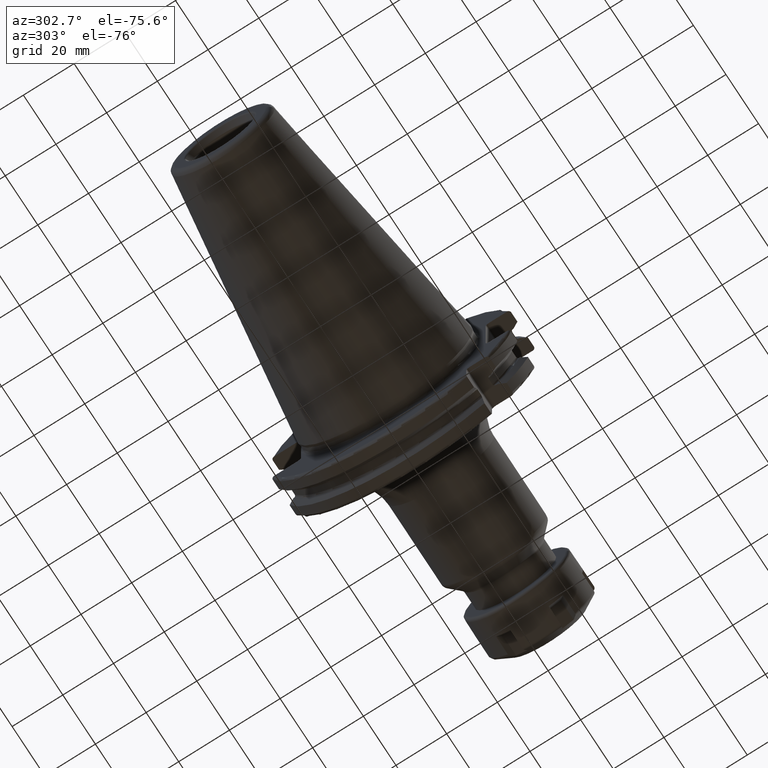
[diagram: clean part render]
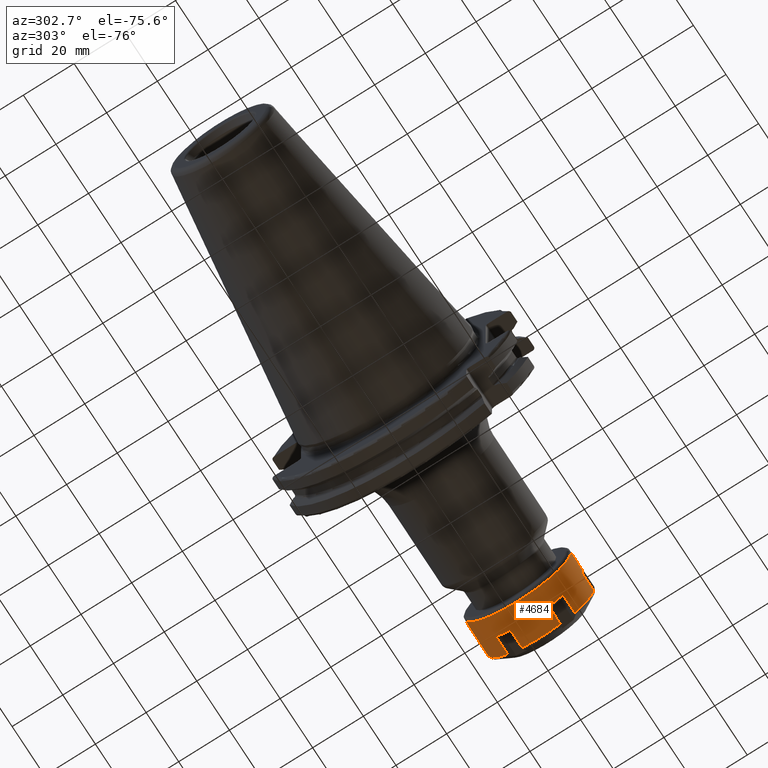
[diagram: same view with one face highlighted and labeled with its STEP entity id]
A machine part, auxiliary view. The second image highlights one B-rep face of the part: STEP entity #4684.
In plain terms, the highlighted cylindrical surface (partial cylindrical patch) has radius 21 mm, axis along (1, 0, 0).
Its self-contained STEP definition (entity closure, byte-faithful):
#3408=DIRECTION('',(9.999999999979E-1,1.452794262624E-6,-1.445246504649E-6));
#3409=VECTOR('',#3408,7.214202484702E0);
#3410=CARTESIAN_POINT('',(8.600008063689E0,7.578287451463E0,-1.958491746355E1));
#3411=LINE('',#3410,#3409);
#3424=DIRECTION('',(-1.E0,0.E0,0.E0));
#3425=VECTOR('',#3424,7.214210890546E0);
#3426=CARTESIAN_POINT('',(1.581421054838E1,1.317189611779E1,-1.635546247167E1));
#3427=LINE('',#3426,#3425);
#3506=CARTESIAN_POINT('',(1.581421054838E1,-1.317189611779E1,
-1.635546247167E1));
#3526=CARTESIAN_POINT('',(1.581421054838E1,-2.075019405E1,-3.229465418179E0));
#3528=CARTESIAN_POINT('',(1.581421054838E1,7.578297932215E0,-1.958492788985E1));
#3548=CARTESIAN_POINT('',(1.581421054838E1,-7.578297932215E0,
-1.958492788985E1));
#3556=CARTESIAN_POINT('',(1.581421054838E1,1.317189611779E1,-1.635546247167E1));
#3558=CARTESIAN_POINT('',(1.581421054838E1,2.075019405E1,-3.229465418179E0));
#3718=DIRECTION('',(-1.E0,3.594961594389E-14,0.E0));
#3719=VECTOR('',#3718,7.214210548375E0);
#3720=CARTESIAN_POINT('',(1.581421054838E1,-2.075019405E1,-3.229465418179E0));
#3721=LINE('',#3720,#3719);
#3733=CARTESIAN_POINT('',(1.581421054838E1,-1.792614389339E-14,0.E0));
#3734=DIRECTION('',(-1.E0,0.E0,0.E0));
#3735=DIRECTION('',(0.E0,9.881044785716E-1,-1.537840675323E-1));
#3736=AXIS2_PLACEMENT_3D('',#3733,#3734,#3735);
#3738=CARTESIAN_POINT('',(8.6E0,0.E0,0.E0));
#3739=DIRECTION('',(-1.E0,0.E0,0.E0));
#3740=DIRECTION('',(0.E0,1.E0,0.E0));
#3741=AXIS2_PLACEMENT_3D('',#3738,#3739,#3740);
#3743=DIRECTION('',(-1.E0,9.411549393136E-12,6.000804948597E-11));
#3744=VECTOR('',#3743,7.350000000040E0);
#3745=CARTESIAN_POINT('',(8.600000000040E0,2.099999999993E1,
-4.377820052165E-10));
#3746=LINE('',#3745,#3744);
#3747=CARTESIAN_POINT('',(1.25E0,0.E0,0.E0));
#3748=DIRECTION('',(-1.E0,0.E0,0.E0));
#3749=DIRECTION('',(0.E0,1.E0,0.E0));
#3750=AXIS2_PLACEMENT_3D('',#3747,#3748,#3749);
#3752=DIRECTION('',(-1.E0,-9.436200875805E-12,-6.000654573246E-11));
#3753=VECTOR('',#3752,7.350000000040E0);
#3754=CARTESIAN_POINT('',(8.600000000040E0,-2.099999999993E1,
4.377679851591E-10));
#3755=LINE('',#3754,#3753);
#3756=CARTESIAN_POINT('',(8.6E0,0.E0,0.E0));
#3757=DIRECTION('',(-1.E0,0.E0,0.E0));
#3758=DIRECTION('',(0.E0,-9.881044785716E-1,-1.537840675323E-1));
#3759=AXIS2_PLACEMENT_3D('',#3756,#3757,#3758);
#3761=CARTESIAN_POINT('',(1.581421054838E1,-1.792614389339E-14,0.E0));
#3762=DIRECTION('',(-1.E0,0.E0,0.E0));
#3763=DIRECTION('',(0.E0,-6.272331484661E-1,-7.788315462700E-1));
#3764=AXIS2_PLACEMENT_3D('',#3761,#3762,#3763);
#3766=CARTESIAN_POINT('',(1.581421054838E1,-1.792614389339E-14,0.E0));
#3767=DIRECTION('',(-1.E0,0.E0,0.E0));
#3768=DIRECTION('',(0.E0,3.608713301055E-1,-9.326156138023E-1));
#3769=AXIS2_PLACEMENT_3D('',#3766,#3767,#3768);
#3788=CARTESIAN_POINT('',(8.600000318507E0,-1.804967895792E-5,
1.352930437069E-5));
#3789=DIRECTION('',(-1.E0,0.E0,0.E0));
#3790=DIRECTION('',(0.E0,6.272333551021E-1,-7.788313798553E-1));
#3791=AXIS2_PLACEMENT_3D('',#3788,#3789,#3790);
#3807=DIRECTION('',(1.E0,0.E0,0.E0));
#3808=VECTOR('',#3807,7.214210548375E0);
#3809=CARTESIAN_POINT('',(8.6E0,2.075019405E1,-3.229465418179E0));
#3810=LINE('',#3809,#3808);
#4032=DIRECTION('',(9.999999999998E-1,6.709444709144E-7,9.098406604267E-8));
#4033=VECTOR('',#4032,7.214212575504E0);
#4034=CARTESIAN_POINT('',(8.599997972873E0,-1.317190095812E1,
-1.635546312805E1));
#4035=LINE('',#4034,#4033);
#4048=DIRECTION('',(-1.E0,0.E0,0.E0));
#4049=VECTOR('',#4048,7.214210815093E0);
#4050=CARTESIAN_POINT('',(1.581421054838E1,-7.578297932215E0,
-1.958492788985E1));
#4051=LINE('',#4050,#4049);
#4081=CARTESIAN_POINT('',(8.600000222181E0,-7.035000469932E-6,
-1.879731692430E-6));
#4082=DIRECTION('',(-1.E0,0.E0,0.E0));
#4083=DIRECTION('',(0.E0,-3.608710688571E-1,-9.326157148911E-1));
#4084=AXIS2_PLACEMENT_3D('',#4081,#4082,#4083);
#4100=CARTESIAN_POINT('',(1.25E0,2.1E1,0.E0));
#4101=CARTESIAN_POINT('',(1.25E0,-2.1E1,0.E0));
#4102=VERTEX_POINT('',#4100);
#4103=VERTEX_POINT('',#4101);
#4110=VERTEX_POINT('',#3558);
#4111=CARTESIAN_POINT('',(8.6E0,2.1E1,0.E0));
#4112=CARTESIAN_POINT('',(8.6E0,2.075019405E1,-3.229465418179E0));
#4113=VERTEX_POINT('',#4111);
#4114=VERTEX_POINT('',#4112);
#4155=VERTEX_POINT('',#3526);
#4156=CARTESIAN_POINT('',(8.6E0,-2.1E1,0.E0));
#4158=VERTEX_POINT('',#4156);
#4160=CARTESIAN_POINT('',(8.6E0,-2.075019405E1,-3.229465418179E0));
#4161=VERTEX_POINT('',#4160);
#4170=VERTEX_POINT('',#3506);
#4171=VERTEX_POINT('',#3548);
#4172=CARTESIAN_POINT('',(8.600000222181E0,-7.578297626635E0,
-1.958492710012E1));
#4173=CARTESIAN_POINT('',(8.600000222181E0,-1.317189658068E1,
-1.635546304645E1));
#4174=VERTEX_POINT('',#4172);
#4175=VERTEX_POINT('',#4173);
#4184=VERTEX_POINT('',#3528);
#4185=VERTEX_POINT('',#3556);
#4186=CARTESIAN_POINT('',(8.600000318507E0,1.317189540004E1,-1.635546158045E1));
#4187=CARTESIAN_POINT('',(8.600000318507E0,7.578298503418E0,-1.958492936603E1));
#4188=VERTEX_POINT('',#4186);
#4189=VERTEX_POINT('',#4187);
#4651=CARTESIAN_POINT('',(-1.E0,0.E0,0.E0));
#4652=DIRECTION('',(1.E0,0.E0,0.E0));
#4653=DIRECTION('',(0.E0,-1.E0,0.E0));
#4654=AXIS2_PLACEMENT_3D('',#4651,#4652,#4653);
#4655=CYLINDRICAL_SURFACE('',#4654,2.1E1);
#4657=ORIENTED_EDGE('',*,*,#4656,.F.);
#4658=ORIENTED_EDGE('',*,*,#4330,.F.);
#4659=ORIENTED_EDGE('',*,*,#4435,.F.);
#4661=ORIENTED_EDGE('',*,*,#4660,.F.);
#4663=ORIENTED_EDGE('',*,*,#4662,.F.);
#4665=ORIENTED_EDGE('',*,*,#4664,.T.);
#4667=ORIENTED_EDGE('',*,*,#4666,.T.);
#4669=ORIENTED_EDGE('',*,*,#4668,.F.);
#4671=ORIENTED_EDGE('',*,*,#4670,.F.);
#4672=ORIENTED_EDGE('',*,*,#4631,.F.);
#4673=ORIENTED_EDGE('',*,*,#4404,.F.);
#4675=ORIENTED_EDGE('',*,*,#4674,.F.);
#4677=ORIENTED_EDGE('',*,*,#4676,.F.);
#4679=ORIENTED_EDGE('',*,*,#4678,.F.);
#4680=ORIENTED_EDGE('',*,*,#4418,.F.);
#4681=ORIENTED_EDGE('',*,*,#4254,.F.);
#4682=EDGE_LOOP('',(#4657,#4658,#4659,#4661,#4663,#4665,#4667,#4669,#4671,#4672,
#4673,#4675,#4677,#4679,#4680,#4681));
#4683=FACE_OUTER_BOUND('',#4682,.F.);
#4684=ADVANCED_FACE('',(#4683),#4655,.T.);
#3737=CIRCLE('',#3736,2.1E1);
#3742=CIRCLE('',#3741,2.1E1);
#3751=CIRCLE('',#3750,2.1E1);
#3760=CIRCLE('',#3759,2.1E1);
#3765=CIRCLE('',#3764,2.1E1);
#3770=CIRCLE('',#3769,2.1E1);
#3792=CIRCLE('',#3791,2.100002071410E1);
#4085=CIRCLE('',#4084,2.099999486142E1);
#4254=EDGE_CURVE('',#4189,#4184,#3411,.T.);
#4330=EDGE_CURVE('',#4185,#4188,#3427,.T.);
#4404=EDGE_CURVE('',#4170,#4155,#3765,.T.);
#4418=EDGE_CURVE('',#4184,#4171,#3770,.T.);
#4435=EDGE_CURVE('',#4110,#4185,#3737,.T.);
#4631=EDGE_CURVE('',#4155,#4161,#3721,.T.);
#4656=EDGE_CURVE('',#4188,#4189,#3792,.T.);
#4660=EDGE_CURVE('',#4114,#4110,#3810,.T.);
#4662=EDGE_CURVE('',#4113,#4114,#3742,.T.);
#4664=EDGE_CURVE('',#4113,#4102,#3746,.T.);
#4666=EDGE_CURVE('',#4102,#4103,#3751,.T.);
#4668=EDGE_CURVE('',#4158,#4103,#3755,.T.);
#4670=EDGE_CURVE('',#4161,#4158,#3760,.T.);
#4674=EDGE_CURVE('',#4175,#4170,#4035,.T.);
#4676=EDGE_CURVE('',#4174,#4175,#4085,.T.);
#4678=EDGE_CURVE('',#4171,#4174,#4051,.T.);